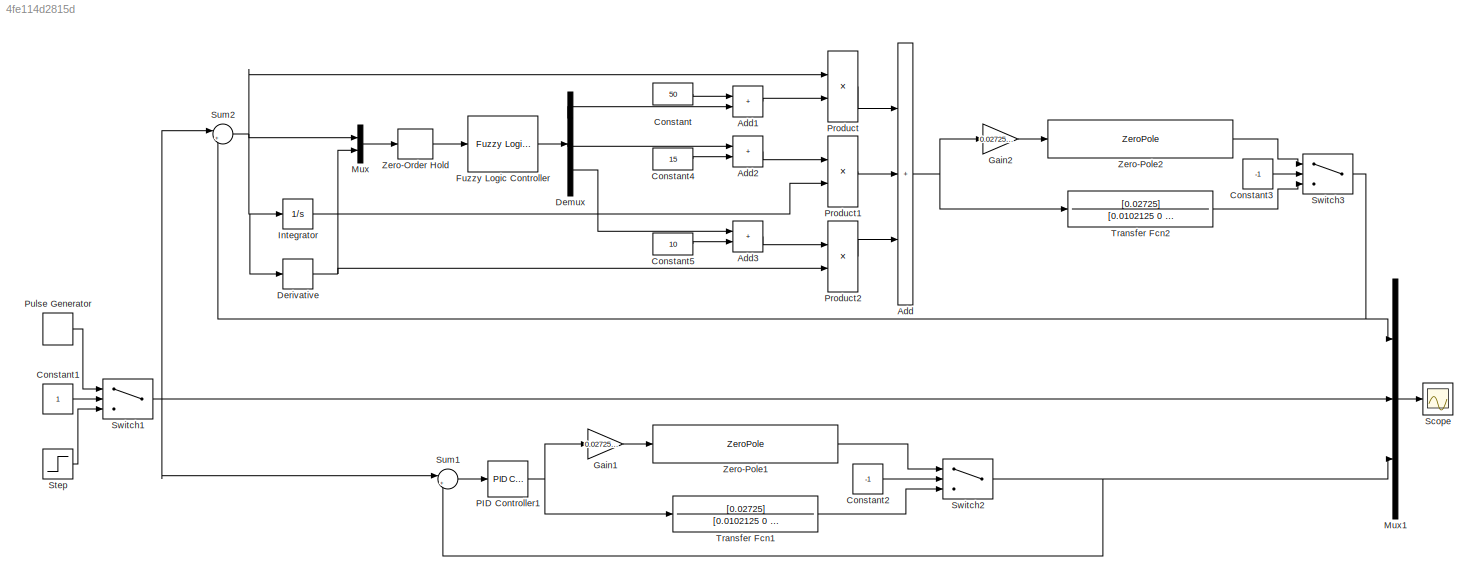
MODEL slx_4fe114d2815d
KIND model
CONFIG AbsTol = auto
CONFIG EnableMultiTasking = off
CONFIG FixedStep = auto
CONFIG MaxStep = auto
CONFIG MinStep = auto
CONFIG RelTol = 1e-3
CONFIG SampleTimeConstraint = Unconstrained
CONFIG SolverName = VariableStepAuto
CONFIG StartTime = 0.0
CONFIG StopTime = 10
BLOCK [Sum] Add
  IconShape = rectangular
  Inputs = +++
  Ports = [3, 1]
BLOCK [Sum] Add1
  IconShape = rectangular
  Ports = [2, 1]
BLOCK [Sum] Add2
  IconShape = rectangular
  Ports = [2, 1]
BLOCK [Sum] Add3
  IconShape = rectangular
  Ports = [2, 1]
BLOCK [Constant] Constant
  Value = 50
BLOCK [Constant] Constant1
BLOCK [Constant] Constant2
  Value = -1
BLOCK [Constant] Constant3
  Value = -1
BLOCK [Constant] Constant4
  Value = 15
BLOCK [Constant] Constant5
  Value = 10
BLOCK [Demux] Demux
  Outputs = 3
  Ports = [1, 3]
BLOCK [Derivative] Derivative
BLOCK [Reference] Fuzzy Logic Controller  REF=fuzblock/Fuzzy Logic   (lib defined in mdl_858b3b3e7478)
Controller
  Ports = [1, 1]
  SourceBlock = fuzblock/Fuzzy Logic \nController
  SourceProductBaseCode = FL
  SourceType = Fuzzy Inference System
BLOCK [Gain] Gain1
  Gain = 0.02725/0.0102125
BLOCK [Gain] Gain2
  Gain = 0.02725/0.0102125
BLOCK [Integrator] Integrator
  Ports = [1, 1]
BLOCK [Mux] Mux
  DisplayOption = bar
  Inputs = 2
  Ports = [2, 1]
BLOCK [Mux] Mux1
  DisplayOption = bar
  Inputs = 3
  Ports = [3, 1]
BLOCK [Reference] PID Controller1  REF=slpidlib/PID Controller
  Ports = [1, 1]
  SourceBlock = slpidlib/PID Controller
  SourceProductBaseCode = SL
  SourceType = PID 1dof
BLOCK [Product] Product
  Ports = [2, 1]
BLOCK [Product] Product1
  Ports = [2, 1]
BLOCK [Product] Product2
  Ports = [2, 1]
BLOCK [DiscretePulseGenerator] Pulse Generator
  Period = 4
  Ports = [0, 1]
  PulseType = Time based
  PulseWidth = 50
BLOCK [Scope] Scope
  Floating = off
  NumInputPorts = 1
  Ports = [1]
  ScopeSpecificationString = Simulink.scopes.TimeScopeBlockCfg('CurrentConfiguration', extmgr.ConfigurationSet(extmgr.Configuration('Core','General UI',true,'FigureColor',[0.941176470588235 0.941176470588235 0.941176470588235]),extmgr.Configuration('Core','Source UI',true),extmgr.Configuration('Sources','WiredSimulink',true),extmgr.Configuration('Visuals','Time Domain',true,'SerializedDisplays',{struct('MinYLimReal','-0.35292...<+1941ch>
BLOCK [Step] Step
  SampleTime = 0
BLOCK [Sum] Sum1
  Inputs = |+-
  Ports = [2, 1]
BLOCK [Sum] Sum2
  Inputs = |+-
  Ports = [2, 1]
BLOCK [Switch] Switch1
  Criteria = u2 > Threshold
  InputSameDT = off
  SaturateOnIntegerOverflow = off
BLOCK [Switch] Switch2
  Criteria = u2 > Threshold
  InputSameDT = off
  SaturateOnIntegerOverflow = off
BLOCK [Switch] Switch3
  Criteria = u2 > Threshold
  InputSameDT = off
  SaturateOnIntegerOverflow = off
BLOCK [TransferFcn] Transfer Fcn1
  Denominator = [0.0102125 0 -0.26705]
  Numerator = [0.02725]
BLOCK [TransferFcn] Transfer Fcn2
  Denominator = [0.0102125 0 -0.26705]
  Numerator = [0.02725]
BLOCK [ZeroOrderHold] Zero-Order Hold
  SampleTime = -1
BLOCK [ZeroPole] Zero-Pole1
  Poles = [5.11364 -5.11364]
  Zeros = [0 0]
BLOCK [ZeroPole] Zero-Pole2
  Poles = [5.11364 -5.11364]
  Zeros = [0 0]
LINE Add1:1 -> Product:2
LINE Add2:1 -> Product1:1
LINE Add3:1 -> Product2:1
NET Add:1 -> Gain2:1, Transfer Fcn2:1
LINE Constant1:1 -> Switch1:2
LINE Constant2:1 -> Switch2:2
LINE Constant3:1 -> Switch3:2
LINE Constant4:1 -> Add2:2
LINE Constant5:1 -> Add3:2
LINE Constant:1 -> Add1:1
LINE Demux:1 -> Add1:2
LINE Demux:2 -> Add2:1
LINE Demux:3 -> Add3:1
NET Derivative:1 -> Mux:2, Product2:2
LINE Fuzzy Logic Controller:1 -> Demux:1
LINE Gain1:1 -> Zero-Pole1:1
LINE Gain2:1 -> Zero-Pole2:1
LINE Integrator:1 -> Product1:2
LINE Mux1:1 -> Scope:1
LINE Mux:1 -> Zero-Order Hold:1
NET PID Controller1:1 -> Gain1:1, Transfer Fcn1:1
LINE Product1:1 -> Add:2
LINE Product2:1 -> Add:3
LINE Product:1 -> Add:1
LINE Pulse Generator:1 -> Switch1:1
LINE Step:1 -> Switch1:3
LINE Sum1:1 -> PID Controller1:1
NET Sum2:1 -> Derivative:1, Integrator:1, Mux:1, Product:1
NET Switch1:1 -> Mux1:2, Sum1:1, Sum2:1
NET Switch2:1 -> Mux1:3, Sum1:2
NET Switch3:1 -> Mux1:1, Sum2:2
LINE Transfer Fcn1:1 -> Switch2:3
LINE Transfer Fcn2:1 -> Switch3:3
LINE Zero-Order Hold:1 -> Fuzzy Logic Controller:1
LINE Zero-Pole1:1 -> Switch2:1
LINE Zero-Pole2:1 -> Switch3:1
note: NET lines group one-source signal fan-out (src -> all destinations, sorted); 1:1 wires keep LINE
